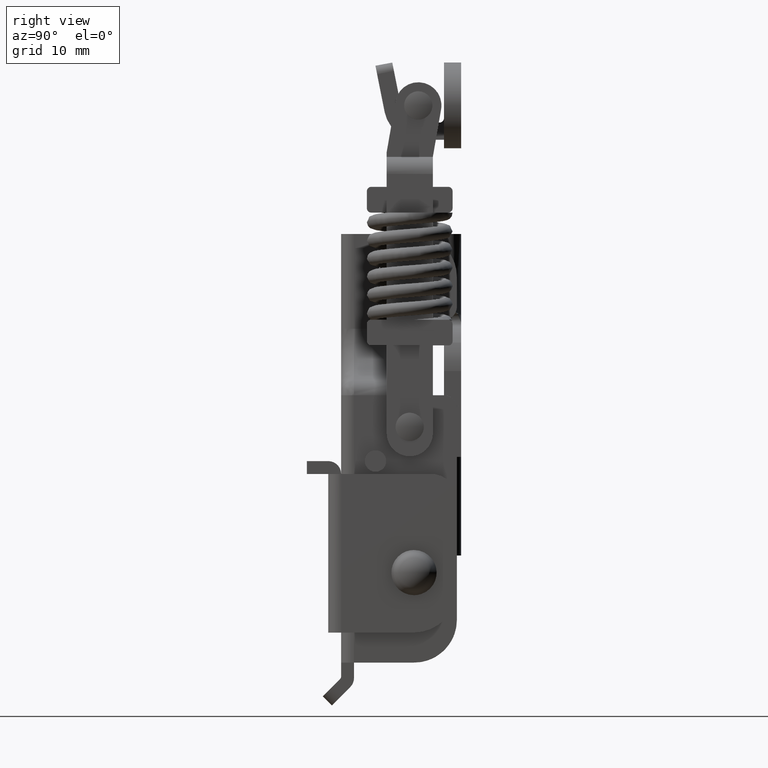
[diagram: clean part render]
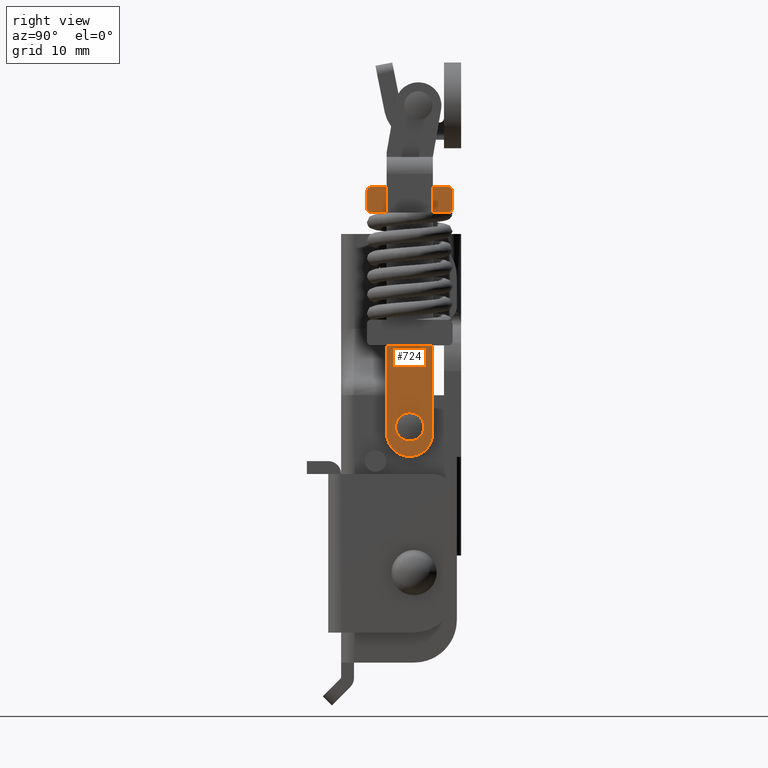
[diagram: same view with one face highlighted and labeled with its STEP entity id]
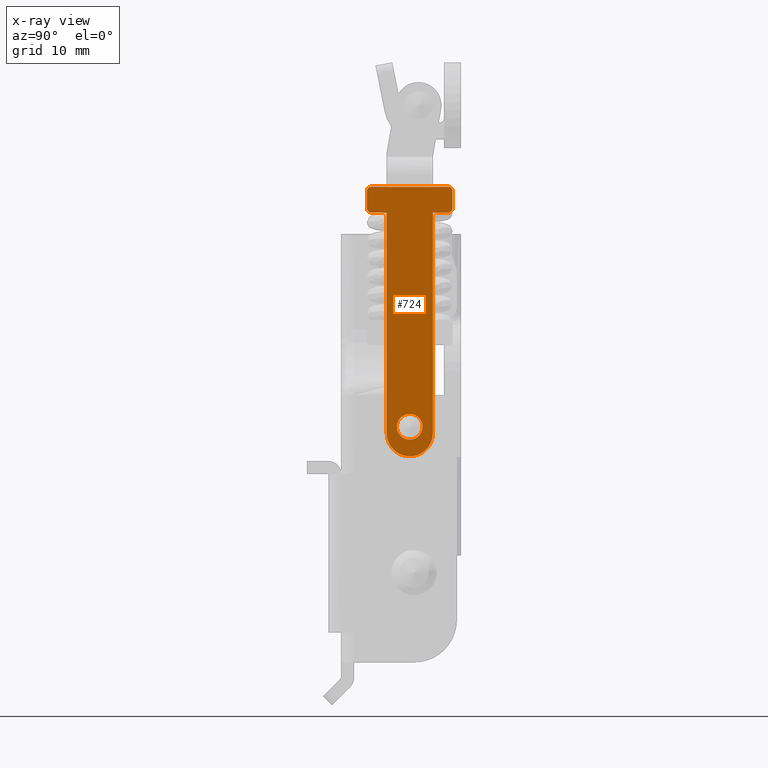
[diagram: x-ray of the same camera — body ghosted, the highlighted face saturated]
A machine part, right view. The second image highlights one B-rep face of the part: STEP entity #724.
The next image is the same camera in x-ray: the body ghosted, the highlighted face saturated — about 0% of this face is hidden behind the body in this view.
In plain terms, the highlighted face is a freeform B-spline surface patch.
Its self-contained STEP definition (entity closure, byte-faithful):
#62=CARTESIAN_POINT('',(-2.488399320721944,-13.249999999999879,-37.686192003250497));
#63=VERTEX_POINT('',#62);
#64=CARTESIAN_POINT('',(-1.0,-13.249999999999879,-39.0));
#65=VERTEX_POINT('',#64);
#66=CARTESIAN_POINT('',(-2.488399320721944,-13.249999999999883,-37.686192003250497));
#67=CARTESIAN_POINT('',(-2.324047899990790,-13.249999999999877,-39.0));
#68=CARTESIAN_POINT('',(-1.0,-13.249999999999879,-39.0));
#76=(BOUNDED_CURVE()B_SPLINE_CURVE(2,(#66,#67,#68),.UNSPECIFIED.,.F.,.U.)B_SPLINE_CURVE_WITH_KNOTS((3,3),(0.271473929000346,0.500000000000000),.UNSPECIFIED.)CURVE()GEOMETRIC_REPRESENTATION_ITEM()RATIONAL_B_SPLINE_CURVE((0.954005430217190,0.732265053928479,1.0))REPRESENTATION_ITEM(''));
#77=EDGE_CURVE('',#63,#65,#76,.T.);
#79=CARTESIAN_POINT('',(0.499942884592716,-13.249999999999879,-37.486910196346599));
#80=VERTEX_POINT('',#79);
#81=CARTESIAN_POINT('',(-1.0,-13.249999999999879,-39.0));
#82=CARTESIAN_POINT('',(0.500000000000000,-13.249999999999879,-39.000000000000007));
#83=CARTESIAN_POINT('',(0.500000000000000,-13.249999999999879,-37.500000000000000));
#84=CARTESIAN_POINT('',(0.500000000000000,-13.249999999999876,-37.493454973363150));
#85=CARTESIAN_POINT('',(0.499942884592716,-13.249999999999885,-37.486910196346599));
#93=(BOUNDED_CURVE()B_SPLINE_CURVE(2,(#81,#82,#83,#84,#85),.UNSPECIFIED.,.F.,.U.)B_SPLINE_CURVE_WITH_KNOTS((3,2,3),(0.500000000000000,0.750000000000000,0.751539894430290),.UNSPECIFIED.)CURVE()GEOMETRIC_REPRESENTATION_ITEM()RATIONAL_B_SPLINE_CURVE((1.0,0.707106781186548,1.0,0.998195901454717,0.996414027879847))REPRESENTATION_ITEM(''));
#94=EDGE_CURVE('',#65,#80,#93,.T.);
#165=CARTESIAN_POINT('',(-1.0,-13.249999999999879,-36.0));
#166=VERTEX_POINT('',#165);
#167=CARTESIAN_POINT('',(-1.0,-13.249999999999879,-36.0));
#168=CARTESIAN_POINT('',(-2.500000000000000,-13.249999999999879,-36.0));
#169=CARTESIAN_POINT('',(-2.500000000000000,-13.249999999999879,-37.500000000000000));
#170=CARTESIAN_POINT('',(-2.500000000000000,-13.249999999999883,-37.593457391432587));
#171=CARTESIAN_POINT('',(-2.488399320721943,-13.249999999999881,-37.686192003250504));
#179=(BOUNDED_CURVE()B_SPLINE_CURVE(2,(#167,#168,#169,#170,#171),.UNSPECIFIED.,.F.,.U.)B_SPLINE_CURVE_WITH_KNOTS((3,2,3),(0.0,0.250000000000000,0.271473929000346),.UNSPECIFIED.)CURVE()GEOMETRIC_REPRESENTATION_ITEM()RATIONAL_B_SPLINE_CURVE((1.0,0.707106781186548,1.0,0.974841727258069,0.954005430217191))REPRESENTATION_ITEM(''));
#180=EDGE_CURVE('',#166,#63,#179,.T.);
#214=CARTESIAN_POINT('',(0.499942884592716,-13.249999999999877,-37.486910196346599));
#215=CARTESIAN_POINT('',(0.486966815087901,-13.249999999999883,-35.999999999999993));
#216=CARTESIAN_POINT('',(-1.0,-13.249999999999879,-36.0));
#224=(BOUNDED_CURVE()B_SPLINE_CURVE(2,(#214,#215,#216),.UNSPECIFIED.,.F.,.U.)B_SPLINE_CURVE_WITH_KNOTS((3,3),(0.751539894430291,1.0),.UNSPECIFIED.)CURVE()GEOMETRIC_REPRESENTATION_ITEM()RATIONAL_B_SPLINE_CURVE((0.996414027879847,0.708910879731830,1.0))REPRESENTATION_ITEM(''));
#225=EDGE_CURVE('',#80,#166,#224,.T.);
#235=CARTESIAN_POINT('',(-5.500000000000000,-13.249999999999879,-9.500000000000199));
#236=VERTEX_POINT('',#235);
#237=CARTESIAN_POINT('',(3.500000000000000,-13.249999999999879,-9.500000000000199));
#238=VERTEX_POINT('',#237);
#239=CARTESIAN_POINT('',(-5.500000000000000,-13.249999999999879,-9.500000000000199));
#240=CARTESIAN_POINT('',(3.500000000000000,-13.249999999999879,-9.500000000000199));
#241=QUASI_UNIFORM_CURVE('',1,(#239,#240),.UNSPECIFIED.,.F.,.U.);
#242=EDGE_CURVE('',#236,#238,#241,.T.);
#280=CARTESIAN_POINT('',(4.0,-13.249999999999879,-10.0));
#281=VERTEX_POINT('',#280);
#282=CARTESIAN_POINT('',(4.0,-13.249999999999879,-10.0));
#283=CARTESIAN_POINT('',(4.000000000000000,-13.249999999999879,-9.500000000000000));
#284=CARTESIAN_POINT('',(3.500000000000000,-13.249999999999879,-9.500000000000199));
#292=(BOUNDED_CURVE()B_SPLINE_CURVE(2,(#282,#283,#284),.UNSPECIFIED.,.F.,.U.)CURVE()GEOMETRIC_REPRESENTATION_ITEM()QUASI_UNIFORM_CURVE()RATIONAL_B_SPLINE_CURVE((1.0,0.707106781186548,1.0))REPRESENTATION_ITEM(''));
#293=EDGE_CURVE('',#281,#238,#292,.T.);
#324=CARTESIAN_POINT('',(4.0,-13.249999999999879,-12.0));
#325=VERTEX_POINT('',#324);
#326=CARTESIAN_POINT('',(4.0,-13.249999999999879,-10.0));
#327=CARTESIAN_POINT('',(4.0,-13.249999999999879,-12.0));
#328=QUASI_UNIFORM_CURVE('',1,(#326,#327),.UNSPECIFIED.,.F.,.U.);
#329=EDGE_CURVE('',#281,#325,#328,.T.);
#361=CARTESIAN_POINT('',(3.500001000000000,-13.249999999999879,-12.500000000000000));
#362=VERTEX_POINT('',#361);
#363=CARTESIAN_POINT('',(3.500001000000000,-13.249999999999879,-12.500000000000000));
#364=CARTESIAN_POINT('',(4.000000499999999,-13.249999999999879,-12.500000000000000));
#365=CARTESIAN_POINT('',(4.0,-13.249999999999879,-12.0));
#373=(BOUNDED_CURVE()B_SPLINE_CURVE(2,(#363,#364,#365),.UNSPECIFIED.,.F.,.U.)CURVE()GEOMETRIC_REPRESENTATION_ITEM()QUASI_UNIFORM_CURVE()RATIONAL_B_SPLINE_CURVE((1.0,0.707106781186548,1.0))REPRESENTATION_ITEM(''));
#374=EDGE_CURVE('',#362,#325,#373,.T.);
#405=CARTESIAN_POINT('',(1.700000000000100,-13.249999999999879,-12.500000000000000));
#406=VERTEX_POINT('',#405);
#407=CARTESIAN_POINT('',(3.500001000000000,-13.249999999999879,-12.500000000000000));
#408=CARTESIAN_POINT('',(1.700000000000100,-13.249999999999879,-12.500000000000000));
#409=QUASI_UNIFORM_CURVE('',1,(#407,#408),.UNSPECIFIED.,.F.,.U.);
#410=EDGE_CURVE('',#362,#406,#409,.T.);
#433=CARTESIAN_POINT('',(1.700000000000100,-13.249999999999879,-38.250000000000000));
#434=VERTEX_POINT('',#433);
#435=CARTESIAN_POINT('',(1.700000000000100,-13.249999999999879,-12.500000000000000));
#436=CARTESIAN_POINT('',(1.700000000000100,-13.249999999999879,-38.250000000000000));
#437=QUASI_UNIFORM_CURVE('',1,(#435,#436),.UNSPECIFIED.,.F.,.U.);
#438=EDGE_CURVE('',#406,#434,#437,.T.);
#474=CARTESIAN_POINT('',(-3.700000000000105,-13.249999999999879,-38.250000000000000));
#475=VERTEX_POINT('',#474);
#476=CARTESIAN_POINT('',(-3.700000000000105,-13.249999999999879,-38.250000000000000));
#477=CARTESIAN_POINT('',(-3.700000000000106,-13.249999999999879,-40.950000000000109));
#478=CARTESIAN_POINT('',(-1.0,-13.249999999999879,-40.950000000000102));
#479=CARTESIAN_POINT('',(1.700000000000105,-13.249999999999879,-40.950000000000109));
#480=CARTESIAN_POINT('',(1.700000000000105,-13.249999999999879,-38.250000000000000));
#488=(BOUNDED_CURVE()B_SPLINE_CURVE(2,(#476,#477,#478,#479,#480),.UNSPECIFIED.,.F.,.U.)B_SPLINE_CURVE_WITH_KNOTS((3,2,3),(0.0,0.500000000000000,1.0),.UNSPECIFIED.)CURVE()GEOMETRIC_REPRESENTATION_ITEM()RATIONAL_B_SPLINE_CURVE((1.0,0.707106781186548,1.0,0.707106781186548,1.0))REPRESENTATION_ITEM(''));
#489=EDGE_CURVE('',#475,#434,#488,.T.);
#522=CARTESIAN_POINT('',(-3.700000000000105,-13.249999999999879,-12.500000000000000));
#523=VERTEX_POINT('',#522);
#524=CARTESIAN_POINT('',(-3.700000000000105,-13.249999999999879,-38.250000000000000));
#525=CARTESIAN_POINT('',(-3.700000000000105,-13.249999999999879,-12.500000000000000));
#526=QUASI_UNIFORM_CURVE('',1,(#524,#525),.UNSPECIFIED.,.F.,.U.);
#527=EDGE_CURVE('',#475,#523,#526,.T.);
#550=CARTESIAN_POINT('',(-5.499999000000000,-13.249999999999879,-12.500000000000000));
#551=VERTEX_POINT('',#550);
#552=CARTESIAN_POINT('',(-3.700000000000105,-13.249999999999879,-12.500000000000000));
#553=CARTESIAN_POINT('',(-5.499999000000000,-13.249999999999879,-12.500000000000000));
#554=QUASI_UNIFORM_CURVE('',1,(#552,#553),.UNSPECIFIED.,.F.,.U.);
#555=EDGE_CURVE('',#523,#551,#554,.T.);
#587=CARTESIAN_POINT('',(-5.999999000000000,-13.249999999999879,-12.0));
#588=VERTEX_POINT('',#587);
#589=CARTESIAN_POINT('',(-5.999999000000001,-13.249999999999879,-12.0));
#590=CARTESIAN_POINT('',(-5.999999000000002,-13.249999999999879,-12.500000000000000));
#591=CARTESIAN_POINT('',(-5.499999000000000,-13.249999999999879,-12.500000000000000));
#599=(BOUNDED_CURVE()B_SPLINE_CURVE(2,(#589,#590,#591),.UNSPECIFIED.,.F.,.U.)CURVE()GEOMETRIC_REPRESENTATION_ITEM()QUASI_UNIFORM_CURVE()RATIONAL_B_SPLINE_CURVE((1.0,0.707106781186548,1.0))REPRESENTATION_ITEM(''));
#600=EDGE_CURVE('',#588,#551,#599,.T.);
#631=CARTESIAN_POINT('',(-6.000000000000230,-13.249999999999879,-10.0));
#632=VERTEX_POINT('',#631);
#633=CARTESIAN_POINT('',(-5.999999000000000,-13.249999999999879,-12.0));
#634=CARTESIAN_POINT('',(-6.000000000000230,-13.249999999999879,-10.0));
#635=QUASI_UNIFORM_CURVE('',1,(#633,#634),.UNSPECIFIED.,.F.,.U.);
#636=EDGE_CURVE('',#588,#632,#635,.T.);
#668=CARTESIAN_POINT('',(-5.500000000000000,-13.249999999999879,-9.500000000000199));
#669=CARTESIAN_POINT('',(-6.000000000000032,-13.249999999999881,-9.500000000000199));
#670=CARTESIAN_POINT('',(-6.000000000000229,-13.249999999999879,-10.0));
#678=(BOUNDED_CURVE()B_SPLINE_CURVE(2,(#668,#669,#670),.UNSPECIFIED.,.F.,.U.)CURVE()GEOMETRIC_REPRESENTATION_ITEM()QUASI_UNIFORM_CURVE()RATIONAL_B_SPLINE_CURVE((1.0,0.707106781186688,1.0))REPRESENTATION_ITEM(''));
#679=EDGE_CURVE('',#236,#632,#678,.T.);
#699=CARTESIAN_POINT('',(-6.499499980618301,-13.250000000000000,-42.520928324733937));
#700=CARTESIAN_POINT('',(4.499500248838973,-13.250000000000000,-42.520928324733937));
#701=CARTESIAN_POINT('',(-6.499499980618301,-13.250000000000000,-7.929071675266129));
#702=CARTESIAN_POINT('',(4.499500248838973,-13.250000000000000,-7.929071675266129));
#703=B_SPLINE_SURFACE_WITH_KNOTS('',1,1,((#699,#701),(#700,#702)),.UNSPECIFIED.,.F.,.F.,.U.,(2,2),(2,2),(0.0,10.999000229457270),(0.0,34.591856649467807),.UNSPECIFIED.);
#704=ORIENTED_EDGE('',*,*,#679,.T.);
#705=ORIENTED_EDGE('',*,*,#636,.F.);
#706=ORIENTED_EDGE('',*,*,#600,.T.);
#707=ORIENTED_EDGE('',*,*,#555,.F.);
#708=ORIENTED_EDGE('',*,*,#527,.F.);
#709=ORIENTED_EDGE('',*,*,#489,.T.);
#710=ORIENTED_EDGE('',*,*,#438,.F.);
#711=ORIENTED_EDGE('',*,*,#410,.F.);
#712=ORIENTED_EDGE('',*,*,#374,.T.);
#713=ORIENTED_EDGE('',*,*,#329,.F.);
#714=ORIENTED_EDGE('',*,*,#293,.T.);
#715=ORIENTED_EDGE('',*,*,#242,.F.);
#716=EDGE_LOOP('',(#704,#705,#706,#707,#708,#709,#710,#711,#712,#713,#714,#715));
#717=FACE_OUTER_BOUND('',#716,.T.);
#718=ORIENTED_EDGE('',*,*,#94,.F.);
#719=ORIENTED_EDGE('',*,*,#77,.F.);
#720=ORIENTED_EDGE('',*,*,#180,.F.);
#721=ORIENTED_EDGE('',*,*,#225,.F.);
#722=EDGE_LOOP('',(#718,#719,#720,#721));
#723=FACE_BOUND('',#722,.T.);
#724=ADVANCED_FACE('',(#717,#723),#703,.T.);